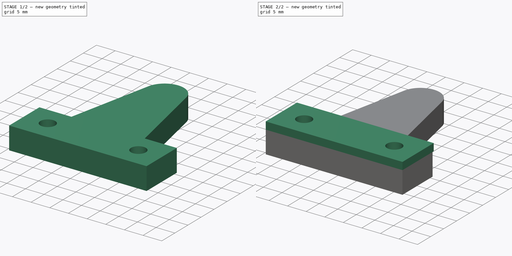
[diagram: build sequence overview — one tinted view per stage of 2, left to right]
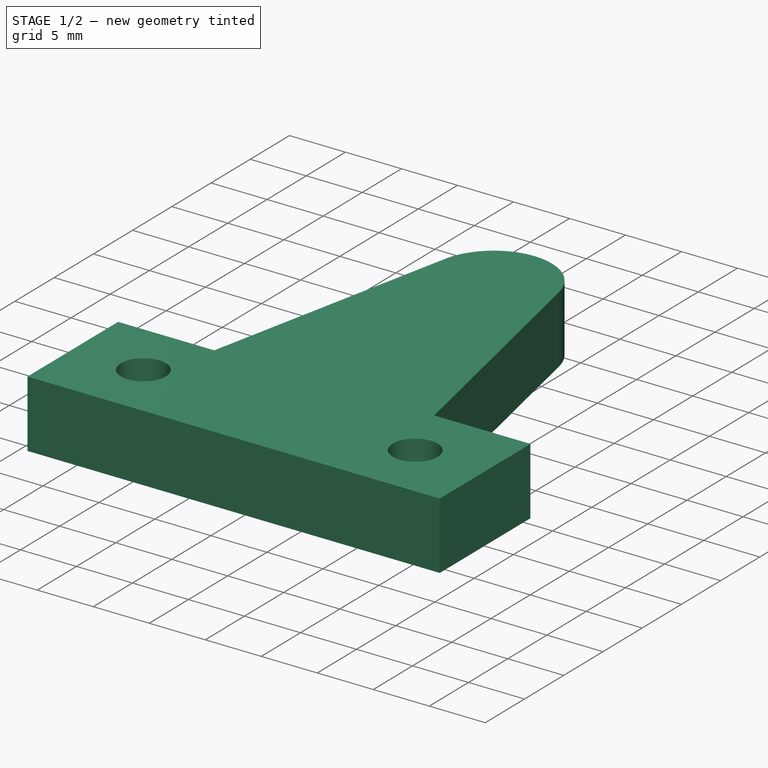
[diagram: stage 1 of 2 — iso view after this stage's code; geometry added in this stage tinted green]
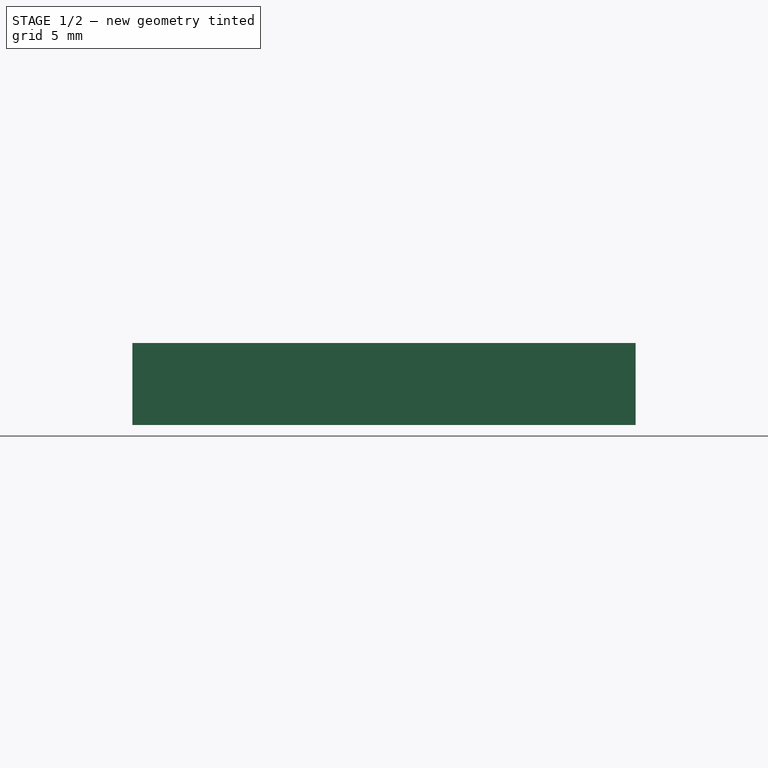
[diagram: stage 1 of 2 — front view after this stage's code; geometry added in this stage tinted green]
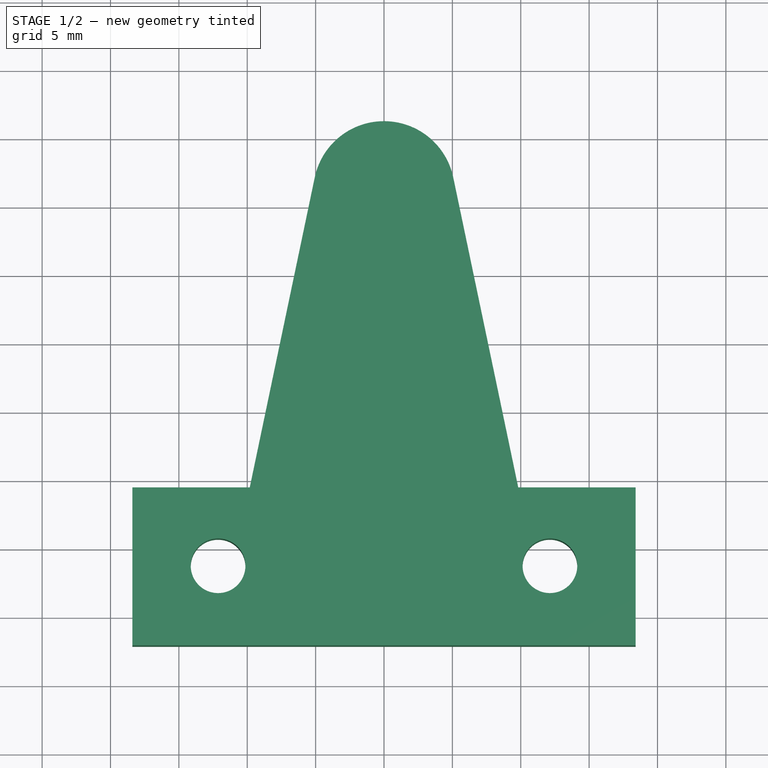
[diagram: stage 1 of 2 — top view after this stage's code; geometry added in this stage tinted green]
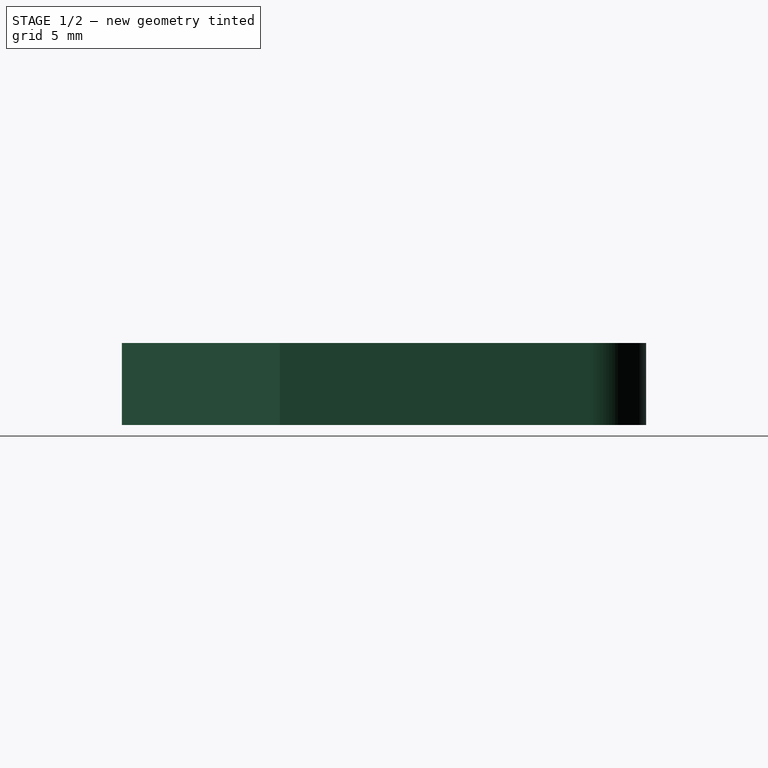
[diagram: stage 1 of 2 — right view after this stage's code; geometry added in this stage tinted green]
FCSTD DOCUMENT  (FreeCAD 0.16R6705 (Git))
Label: fermo1
License: All rights reserved
LicenseURL: http://it.wikipedia.org/wiki/<copyright redacted>
objects: Sketcher::SketchObject×2, PartDesign::Pad×2
note: 6 computed .brp shape members not serialized (recipe doc carries the construction recipe); baked Part::Feature solids carry a one-line shape summary decoded from their .brp

FEATURE [Sketcher::SketchObject] Sketch001
  sketch-geometry (12):
    g0: LineSegment StartX=0 StartY=-2.09969 StartZ=0 EndX=18.4032 EndY=-2.09969 EndZ=0
    g1: LineSegment StartX=18.4032 StartY=-2.09969 StartZ=0 EndX=18.4032 EndY=9.45642 EndZ=0
    g2: LineSegment StartX=18.4032 StartY=9.45642 StartZ=0 EndX=9.81724 EndY=9.45642 EndZ=0
    g3: LineSegment StartX=9.81724 StartY=9.45642 StartZ=0 EndX=5.06318 EndY=32.1323 EndZ=0
    g4: ArcOfCircle CenterX=1.0422e-08 CenterY=31.0708 CenterZ=0 NormalX=0 NormalY=0 NormalZ=1 Radius=5.17326 StartAngle=0.20666 EndAngle=1.5708
    g5: LineSegment StartX=0 StartY=-2.09969 StartZ=0 EndX=-18.4032 EndY=-2.09969 EndZ=0
    g6: LineSegment StartX=-18.4032 StartY=-2.09969 StartZ=0 EndX=-18.4032 EndY=9.45642 EndZ=0
    g7: LineSegment StartX=-18.4032 StartY=9.45642 StartZ=0 EndX=-9.81724 EndY=9.45642 EndZ=0
    g8: LineSegment StartX=-9.81724 StartY=9.45642 StartZ=0 EndX=-5.06318 EndY=32.1323 EndZ=0
    g9: ArcOfCircle CenterX=1.042e-08 CenterY=31.0708 CenterZ=0 NormalX=0 NormalY=0 NormalZ=1 Radius=5.17326 StartAngle=1.5708 EndAngle=2.93493
    g10: Circle CenterX=-12.1334 CenterY=3.72814 CenterZ=0 NormalX=0 NormalY=0 NormalZ=1 Radius=2
    g11: Circle CenterX=12.1334 CenterY=3.72814 CenterZ=0 NormalX=0 NormalY=0 NormalZ=1 Radius=2
  constraints (25):
    c: Coincident(g0,g1)
    c: Coincident(g1,g2)
    c: Horizontal(g2)
    c: Coincident(g5,g6)
    c: Coincident(g6,g7)
    c: Coincident(g7,g8)
    c: Horizontal(g7)
    c: Vertical(g1)
    c: Vertical(g6)
    c: Symmetric(g5,g0,g-2)
    c: Horizontal(g0)
    c: Horizontal(g5)
    c: Equal(g10,g11)
    c: Symmetric(g10,g11,g-2)
    c: Coincident(g3,g4)
    c: Coincident(g9,g4)
    c: Coincident(g8,g9)
    c: Tangent(g8,g9)
    c: Tangent(g4,g9)
    c: Tangent(g3,g4)
    c: PointOnObject(g4,g-2)
    c: Symmetric(g8,g3,g-2)
    c: Radius(g10) = 2
    c: Symmetric(g7,g2,g-2)
    c: Coincident(g2,g3)
FEATURE [PartDesign::Pad] Pad
  Length = 6
  Length2 = 100
  Sketch = -> Sketch001
  Type = 0
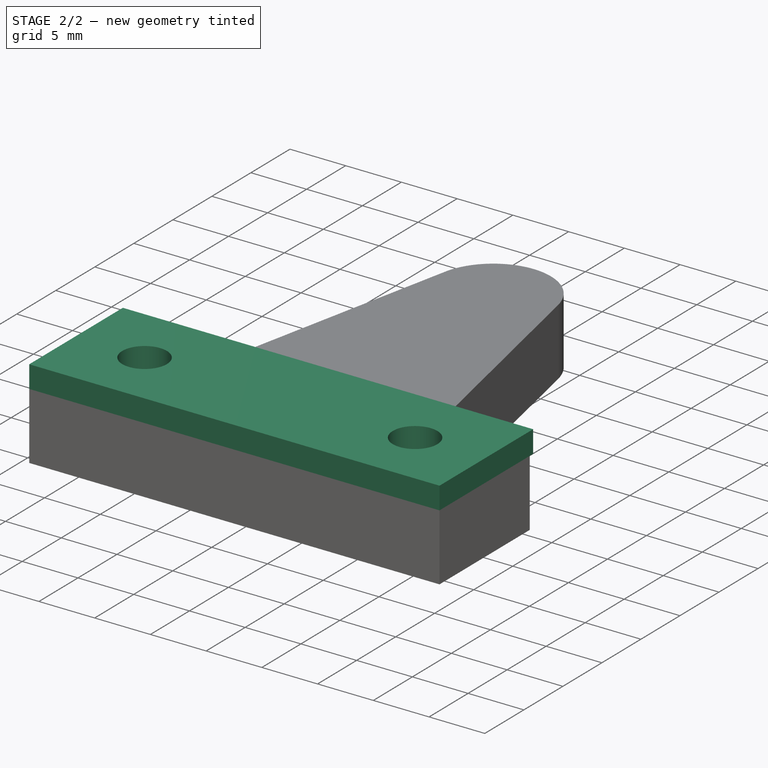
[diagram: stage 2 of 2 — iso view after this stage's code; geometry added in this stage tinted green]
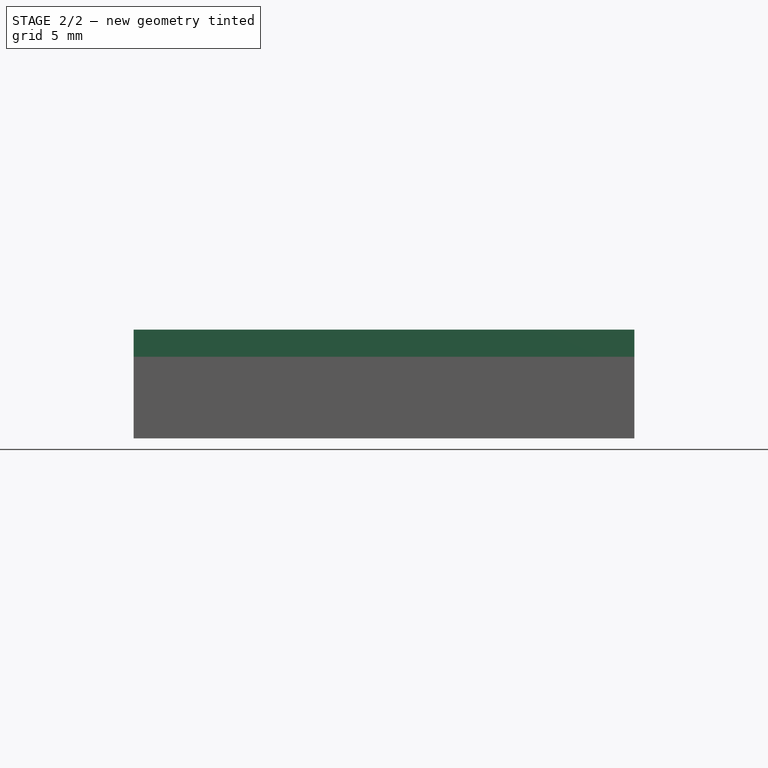
[diagram: stage 2 of 2 — front view after this stage's code; geometry added in this stage tinted green]
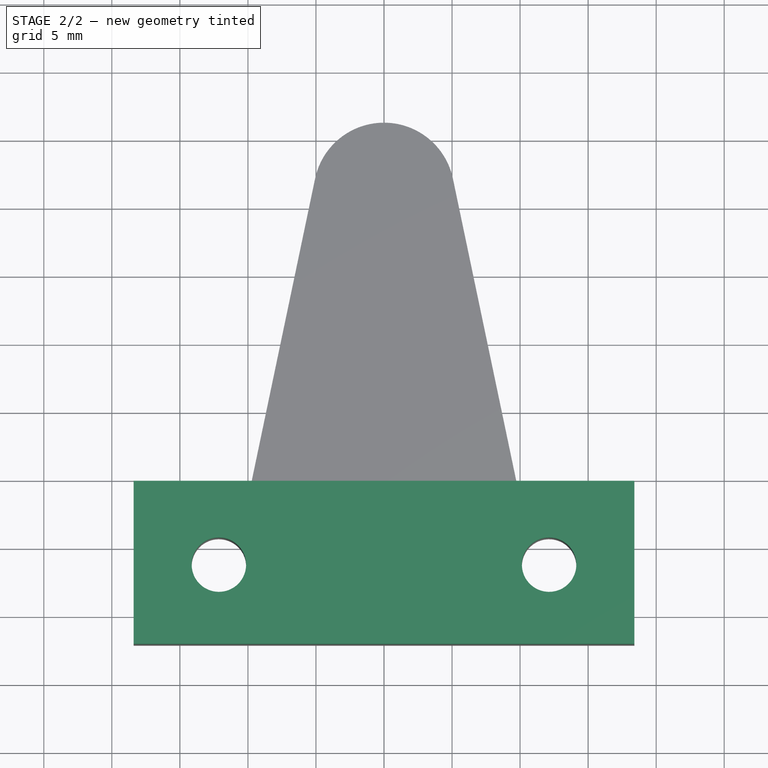
[diagram: stage 2 of 2 — top view after this stage's code; geometry added in this stage tinted green]
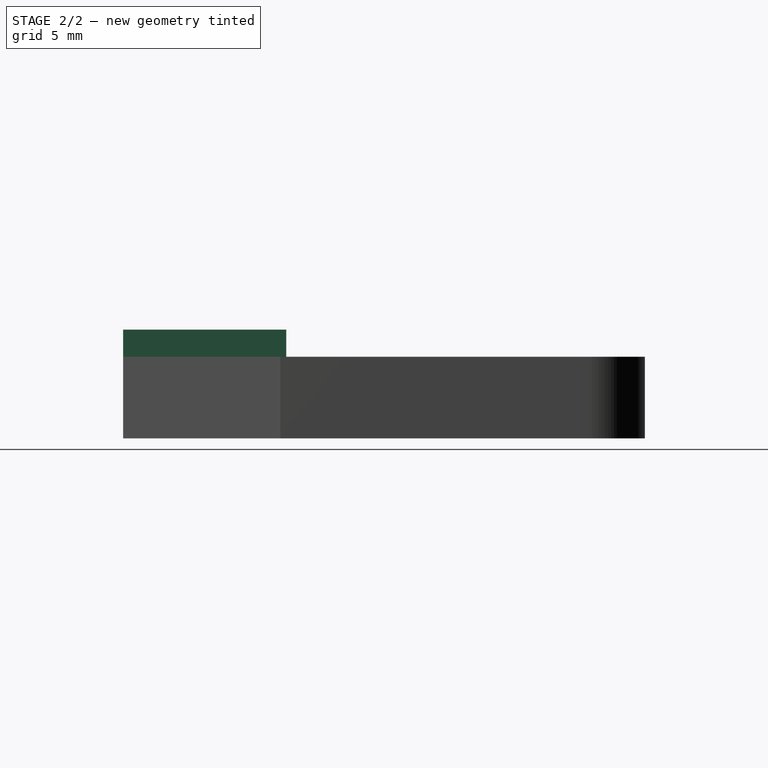
[diagram: stage 2 of 2 — right view after this stage's code; geometry added in this stage tinted green]
FEATURE [Sketcher::SketchObject] Sketch
  ExternalGeometry = -> [Pad]
  Placement = pos=(0,0,6) rot=(0,0,1;0rad)
  Support = -> Pad [Face14]
  sketch-geometry (6):
    g0: LineSegment StartX=-18.4032 StartY=9.89296 StartZ=0 EndX=18.4032 EndY=9.89296 EndZ=0
    g1: LineSegment StartX=18.4032 StartY=9.89296 StartZ=0 EndX=18.4032 EndY=-2.09969 EndZ=0
    g2: LineSegment StartX=18.4032 StartY=-2.09969 StartZ=0 EndX=-18.4032 EndY=-2.09969 EndZ=0
    g3: LineSegment StartX=-18.4032 StartY=-2.09969 StartZ=0 EndX=-18.4032 EndY=9.89296 EndZ=0
    g4: Circle CenterX=-12.1334 CenterY=3.72814 CenterZ=0 NormalX=0 NormalY=0 NormalZ=1 Radius=2
    g5: Circle CenterX=12.1334 CenterY=3.72814 CenterZ=0 NormalX=0 NormalY=0 NormalZ=1 Radius=2
  constraints (11):
    c: Coincident(g0,g1)
    c: Coincident(g1,g2)
    c: Coincident(g2,g3)
    c: Coincident(g3,g0)
    c: Horizontal(g0)
    c: Horizontal(g2)
    c: Vertical(g1)
    c: Vertical(g3)
    c: Equal(g-10,g5)
    c: Equal(g-9,g4)
    c: Coincident(g4,g-9)
FEATURE [PartDesign::Pad] Pad001
  Length = 2
  Length2 = 100
  Sketch = -> Sketch
  Type = 0
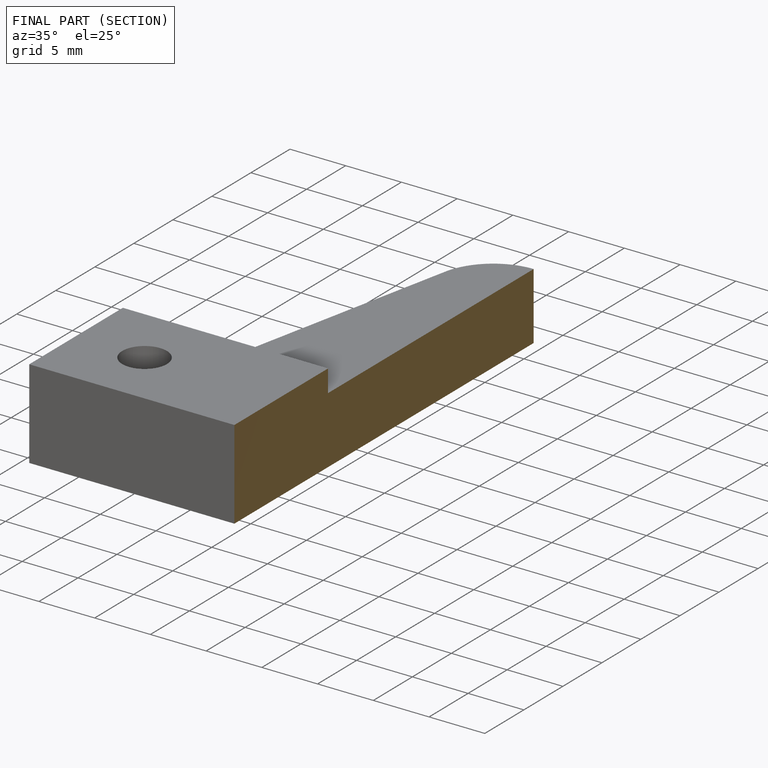
[diagram: finished part — half-section view (interior)]
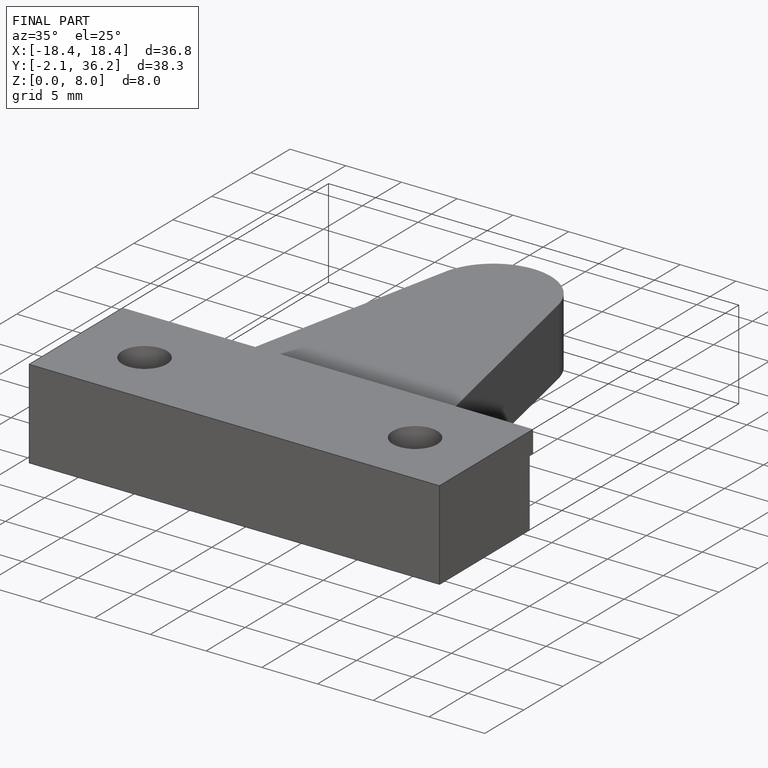
[diagram: finished part — iso view with bounding-box wireframe]
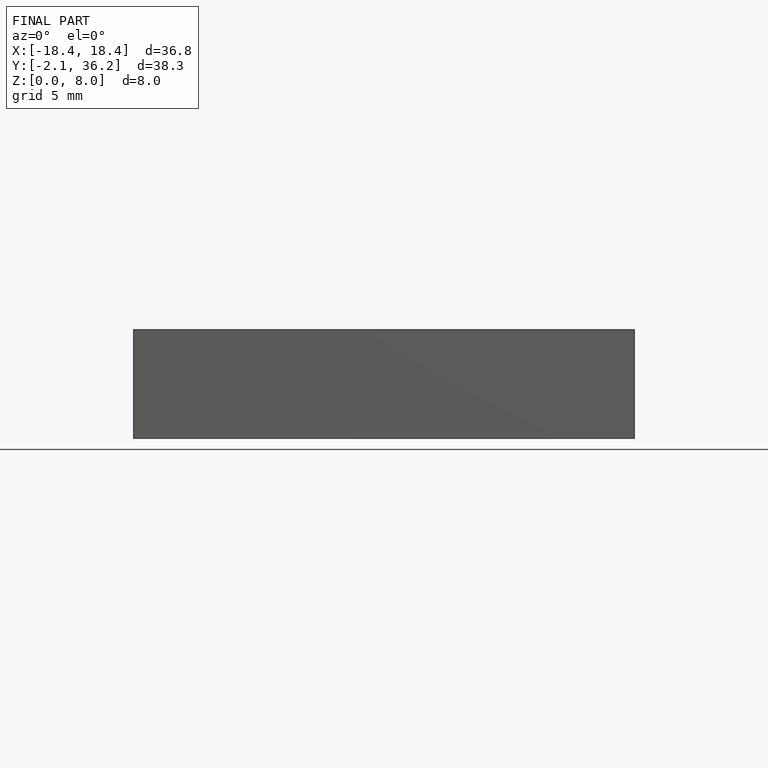
[diagram: finished part — front view with bounding-box wireframe]
